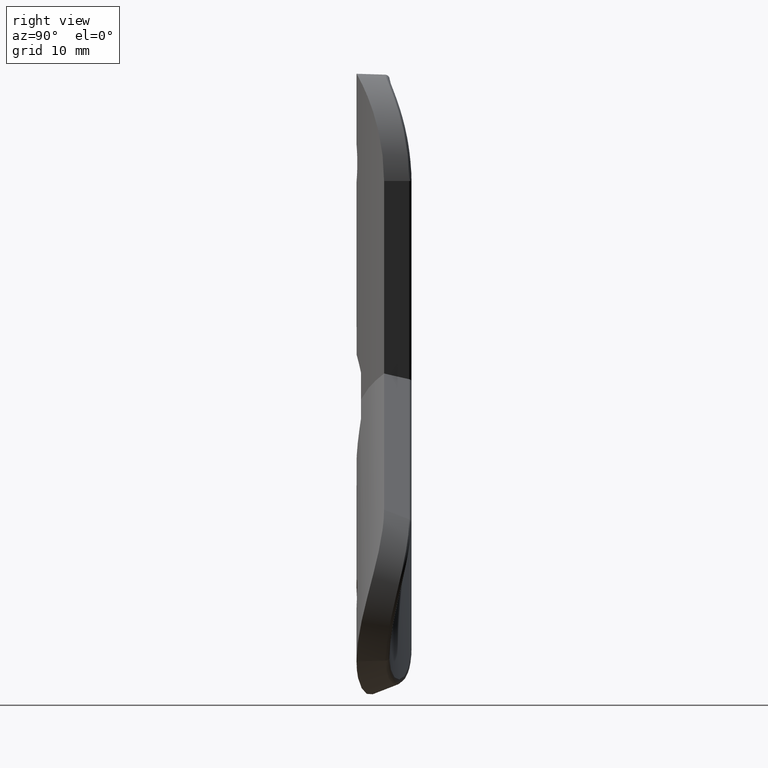
[diagram: clean part render]
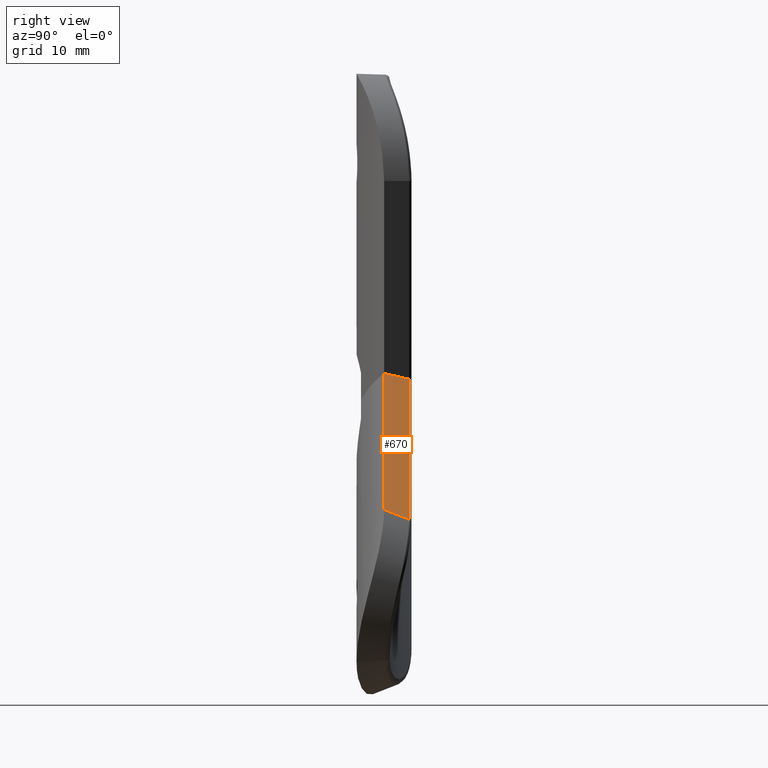
[diagram: same view with one face highlighted and labeled with its STEP entity id]
A machine part, right view. The second image highlights one B-rep face of the part: STEP entity #670.
In plain terms, the highlighted planar face has unit normal (-0.6196, -0.4819, -0.6196).
Its self-contained STEP definition (entity closure, byte-faithful):
#51 = EDGE_CURVE ( 'NONE', #5146, #5643, #11138, .T. ) ;
#416 = CARTESIAN_POINT ( 'NONE',  ( 12.00000000000000200, 3.082346597307949100, 4.970562748477149700 ) ) ;
#670 = ADVANCED_FACE ( 'NONE', ( #13363 ), #816, .F. ) ;
#816 = PLANE ( 'NONE',  #4431 ) ;
#1153 = EDGE_CURVE ( 'NONE', #5146, #1800, #5414, .T. ) ;
#1800 = VERTEX_POINT ( 'NONE', #3547 ) ;
#2562 = CARTESIAN_POINT ( 'NONE',  ( 25.96274597187956700, 6.324327223410776400, -11.51391343100742200 ) ) ;
#2635 = VERTEX_POINT ( 'NONE', #6541 ) ;
#2754 = EDGE_CURVE ( 'NONE', #1800, #2635, #7879, .T. ) ;
#2851 = VECTOR ( 'NONE', #7982, 1000.000000000000100 ) ;
#2912 = CARTESIAN_POINT ( 'NONE',  ( 12.00000000000000200, 3.082346597307949100, 4.970562748477149700 ) ) ;
#3208 = EDGE_CURVE ( 'NONE', #2635, #5643, #10320, .T. ) ;
#3547 = CARTESIAN_POINT ( 'NONE',  ( 27.22361107568209300, 3.082346597307949100, -10.25304832720489600 ) ) ;
#4431 = AXIS2_PLACEMENT_3D ( 'NONE', #6195, #10183, #11227 ) ;
#5146 = VERTEX_POINT ( 'NONE', #2912 ) ;
#5169 = ORIENTED_EDGE ( 'NONE', *, *, #51, .F. ) ;
#5414 = LINE ( 'NONE', #416, #11577 ) ;
#5643 = VERTEX_POINT ( 'NONE', #9802 ) ;
#6195 = CARTESIAN_POINT ( 'NONE',  ( 7.529154340993594400, 11.21096001440223800, 3.118677841239814200 ) ) ;
#6541 = CARTESIAN_POINT ( 'NONE',  ( 26.13116990155711900, 5.891269701761544300, -11.34548950132987200 ) ) ;
#7879 = LINE ( 'NONE', #2562, #13161 ) ;
#7940 = CARTESIAN_POINT ( 'NONE',  ( 7.529154340993594400, 11.21096001440223800, 3.118677841239814200 ) ) ;
#7982 = DIRECTION ( 'NONE',  ( -0.4726034150190206500, 0.8592581254844623400, -0.1957587441247191900 ) ) ;
#8247 = EDGE_LOOP ( 'NONE', ( #11129, #10987, #5169, #8441 ) ) ;
#8441 = ORIENTED_EDGE ( 'NONE', *, *, #1153, .T. ) ;
#9666 = VECTOR ( 'NONE', #12209, 1000.000000000000000 ) ;
#9802 = CARTESIAN_POINT ( 'NONE',  ( 10.45505487545767500, 5.891269701761544300, 4.330625524769526000 ) ) ;
#10183 = DIRECTION ( 'NONE',  ( -0.6195747257277612900, -0.4819277108433759300, -0.6195747257277630600 ) ) ;
#10320 = LINE ( 'NONE', #13095, #9666 ) ;
#10980 = DIRECTION ( 'NONE',  ( 0.7071067811865486800, 0.0000000000000000000, -0.7071067811865464600 ) ) ;
#10987 = ORIENTED_EDGE ( 'NONE', *, *, #3208, .T. ) ;
#11129 = ORIENTED_EDGE ( 'NONE', *, *, #2754, .T. ) ;
#11138 = LINE ( 'NONE', #7940, #2851 ) ;
#11227 = DIRECTION ( 'NONE',  ( -0.7071067811865485700, 0.0000000000000000000, 0.7071067811865465700 ) ) ;
#11577 = VECTOR ( 'NONE', #10980, 999.9999999999998900 ) ;
#12209 = DIRECTION ( 'NONE',  ( -0.7071067811865485700, 2.532295368787406600E-017, 0.7071067811865465700 ) ) ;
#12464 = DIRECTION ( 'NONE',  ( -0.3407743523790604000, 0.8762109800277917400, -0.3407743523790612800 ) ) ;
#13095 = CARTESIAN_POINT ( 'NONE',  ( 9.598078449990486800, 5.891269701761543400, 5.187601950236712300 ) ) ;
#13161 = VECTOR ( 'NONE', #12464, 1000.000000000000200 ) ;
#13363 = FACE_OUTER_BOUND ( 'NONE', #8247, .T. ) ;